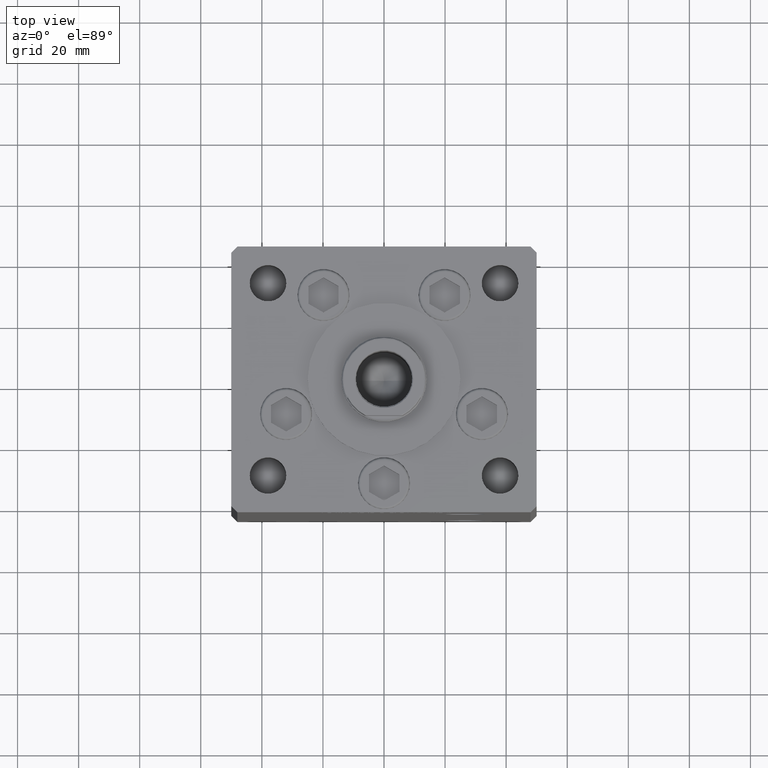
[diagram: clean part render]
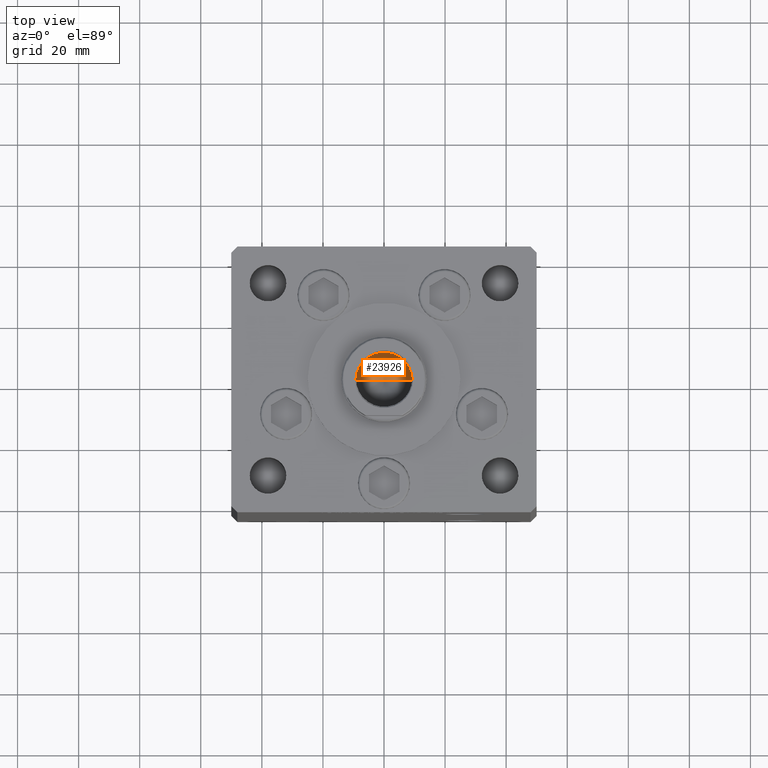
[diagram: same view with one face highlighted and labeled with its STEP entity id]
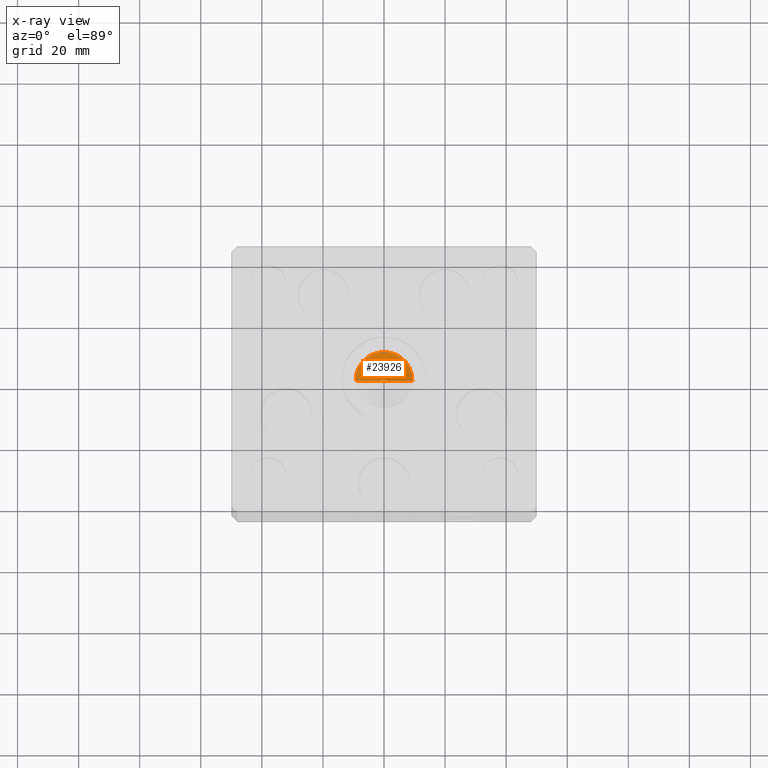
[diagram: x-ray of the same camera — body ghosted, the highlighted face saturated]
A machine part, top view. The second image highlights one B-rep face of the part: STEP entity #23926.
The next image is the same camera in x-ray: the body ghosted, the highlighted face saturated — about 0% of this face is hidden behind the body in this view.
In plain terms, the highlighted conical surface has half-angle 59 deg.
Its self-contained STEP definition (entity closure, byte-faithful):
#667 = EDGE_CURVE ( 'NONE', #12258, #29778, #29785, .T. ) ;
#925 = CARTESIAN_POINT ( 'NONE',  ( 9.249999999999994671, 0.000000000000000000, 130.2500000000000000 ) ) ;
#9617 = CARTESIAN_POINT ( 'NONE',  ( -1.046994375366439223E-14, 0.000000000000000000, 124.6920392739950643 ) ) ;
#10079 = ORIENTED_EDGE ( 'NONE', *, *, #667, .T. ) ;
#12258 = VERTEX_POINT ( 'NONE', #9617 ) ;
#12608 = VECTOR ( 'NONE', #16200, 1000.000000000000000 ) ;
#14774 = DIRECTION ( 'NONE',  ( -0.000000000000000000, -0.000000000000000000, 1.000000000000000000 ) ) ;
#16200 = DIRECTION ( 'NONE',  ( -0.8571673007021117785, 1.049727191138617956E-16, 0.5150380749100550437 ) ) ;
#18494 = CONICAL_SURFACE ( 'NONE', #32810, 9.249999999999994671, 1.029744258676653423 ) ;
#18722 = DIRECTION ( 'NONE',  ( 1.000000000000000000, 0.000000000000000000, 0.000000000000000000 ) ) ;
#19014 = CARTESIAN_POINT ( 'NONE',  ( 0.000000000000000000, 0.000000000000000000, 130.2500000000000000 ) ) ;
#19481 = AXIS2_PLACEMENT_3D ( 'NONE', #34304, #14774, #18722 ) ;
#19636 = VECTOR ( 'NONE', #50834, 1000.000000000000000 ) ;
#21203 = VERTEX_POINT ( 'NONE', #26010 ) ;
#23926 = ADVANCED_FACE ( 'NONE', ( #42489 ), #18494, .F. ) ;
#26010 = CARTESIAN_POINT ( 'NONE',  ( -9.249999999999994671, 1.132798289211300909E-15, 130.2500000000000000 ) ) ;
#29778 = VERTEX_POINT ( 'NONE', #925 ) ;
#29785 = LINE ( 'NONE', #42659, #19636 ) ;
#31914 = EDGE_LOOP ( 'NONE', ( #43029, #10079, #36619 ) ) ;
#32810 = AXIS2_PLACEMENT_3D ( 'NONE', #19014, #34338, #51171 ) ;
#34304 = CARTESIAN_POINT ( 'NONE',  ( 0.000000000000000000, 0.000000000000000000, 130.2500000000000000 ) ) ;
#34338 = DIRECTION ( 'NONE',  ( -0.000000000000000000, -0.000000000000000000, 1.000000000000000000 ) ) ;
#35975 = LINE ( 'NONE', #41407, #12608 ) ;
#36619 = ORIENTED_EDGE ( 'NONE', *, *, #46532, .T. ) ;
#41407 = CARTESIAN_POINT ( 'NONE',  ( -9.249999999999994671, 1.132798289211300909E-15, 130.2500000000000000 ) ) ;
#42214 = CIRCLE ( 'NONE', #19481, 9.249999999999994671 ) ;
#42314 = EDGE_CURVE ( 'NONE', #12258, #21203, #35975, .T. ) ;
#42489 = FACE_OUTER_BOUND ( 'NONE', #31914, .T. ) ;
#42659 = CARTESIAN_POINT ( 'NONE',  ( 9.249999999999994671, 0.000000000000000000, 130.2500000000000000 ) ) ;
#43029 = ORIENTED_EDGE ( 'NONE', *, *, #42314, .F. ) ;
#46532 = EDGE_CURVE ( 'NONE', #29778, #21203, #42214, .T. ) ;
#50834 = DIRECTION ( 'NONE',  ( 0.8571673007021117785, 0.000000000000000000, 0.5150380749100550437 ) ) ;
#51171 = DIRECTION ( 'NONE',  ( 1.000000000000000000, 0.000000000000000000, 0.000000000000000000 ) ) ;